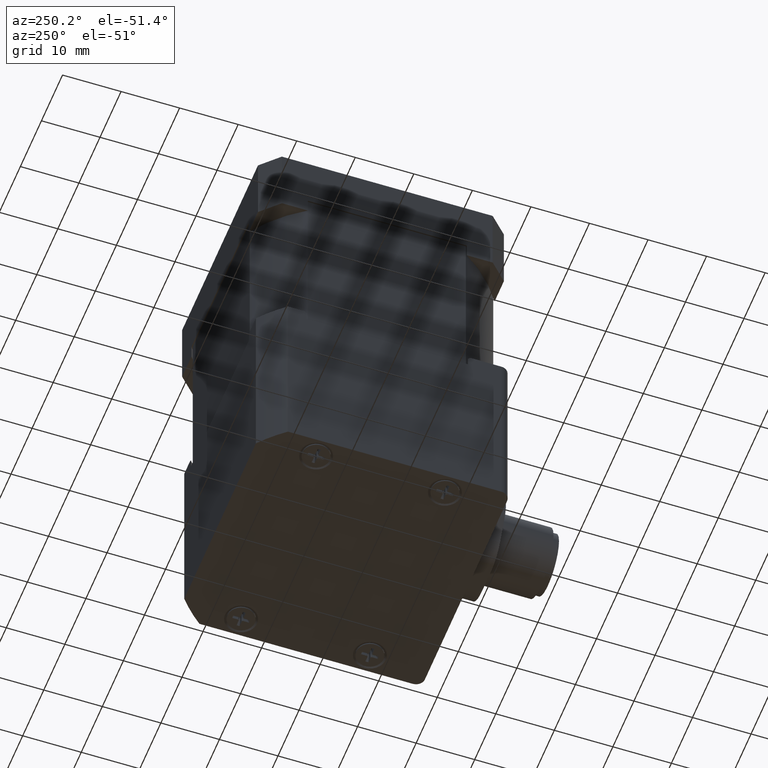
[diagram: clean part render]
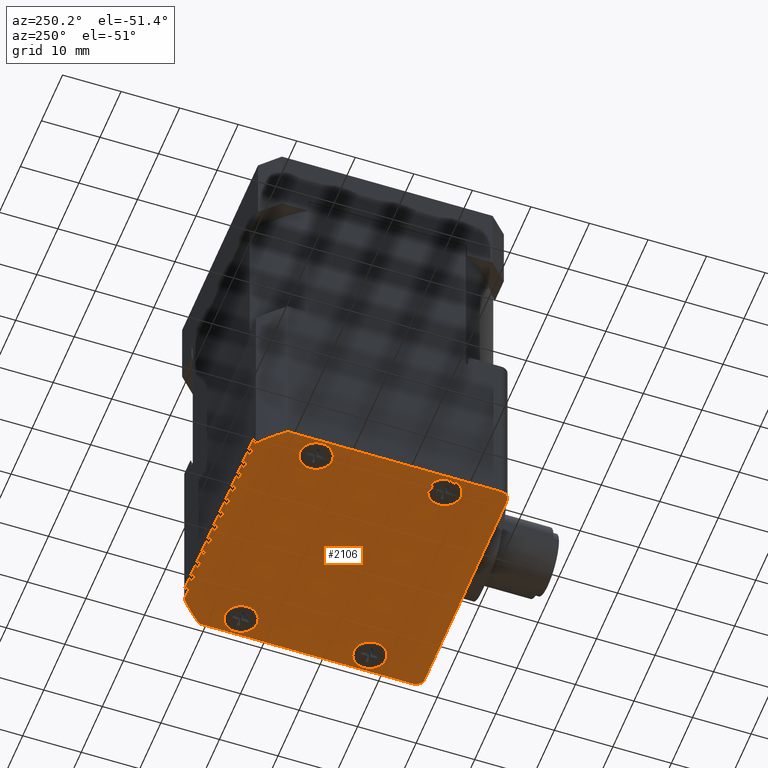
[diagram: same view with one face highlighted and labeled with its STEP entity id]
A machine part, auxiliary view. The second image highlights one B-rep face of the part: STEP entity #2106.
In plain terms, the highlighted planar face has unit normal (-0, 0, -1).
Its self-contained STEP definition (entity closure, byte-faithful):
#1748=CARTESIAN_POINT('',(16.970562748477057,-21.000000000000011,4.0));
#1749=VERTEX_POINT('',#1748);
#1750=CARTESIAN_POINT('',(-16.970562748476755,-21.000000000000014,4.0));
#1751=VERTEX_POINT('',#1750);
#1752=CARTESIAN_POINT('',(16.970562748477057,-21.000000000000011,4.0));
#1753=DIRECTION('',(-1.0,0.0,0.0));
#1754=VECTOR('',#1753,33.941125496953809);
#1755=LINE('',#1752,#1754);
#1756=EDGE_CURVE('',#1749,#1751,#1755,.T.);
#1788=CARTESIAN_POINT('',(21.0,-16.970562748477146,4.0));
#1789=VERTEX_POINT('',#1788);
#1790=CARTESIAN_POINT('',(1.465494E-013,1.865175E-013,4.0));
#1791=DIRECTION('',(0.0,0.0,-1.000000000000000));
#1792=DIRECTION('',(0.628539361054700,-0.777777777777785,0.0));
#1793=AXIS2_PLACEMENT_3D('',#1790,#1791,#1792);
#1794=CIRCLE('',#1793,27.0);
#1795=EDGE_CURVE('',#1789,#1749,#1794,.T.);
#1821=CARTESIAN_POINT('',(21.0,19.500000000000000,4.0));
#1822=VERTEX_POINT('',#1821);
#1823=CARTESIAN_POINT('',(21.0,19.500000000000000,4.0));
#1824=DIRECTION('',(0.0,-1.0,0.0));
#1825=VECTOR('',#1824,36.470562748477143);
#1826=LINE('',#1823,#1825);
#1827=EDGE_CURVE('',#1822,#1789,#1826,.T.);
#1852=CARTESIAN_POINT('',(19.500000000000000,21.0,4.0));
#1853=VERTEX_POINT('',#1852);
#1854=CARTESIAN_POINT('',(19.500000000000000,19.500000000000000,4.0));
#1855=DIRECTION('',(0.0,0.0,-1.0));
#1856=DIRECTION('',(1.0,0.0,0.0));
#1857=AXIS2_PLACEMENT_3D('',#1854,#1855,#1856);
#1858=CIRCLE('',#1857,1.500000000000000);
#1859=EDGE_CURVE('',#1853,#1822,#1858,.T.);
#1885=CARTESIAN_POINT('',(-19.500000000000000,21.0,4.0));
#1886=VERTEX_POINT('',#1885);
#1887=CARTESIAN_POINT('',(-19.500000000000000,21.0,4.0));
#1888=DIRECTION('',(1.0,0.0,0.0));
#1889=VECTOR('',#1888,39.0);
#1890=LINE('',#1887,#1889);
#1891=EDGE_CURVE('',#1886,#1853,#1890,.T.);
#1916=CARTESIAN_POINT('',(-21.0,19.500000000000000,4.0));
#1917=VERTEX_POINT('',#1916);
#1918=CARTESIAN_POINT('',(-19.500000000000000,19.500000000000000,4.0));
#1919=DIRECTION('',(0.0,0.0,-1.0));
#1920=DIRECTION('',(0.0,1.0,0.0));
#1921=AXIS2_PLACEMENT_3D('',#1918,#1919,#1920);
#1922=CIRCLE('',#1921,1.500000000000000);
#1923=EDGE_CURVE('',#1917,#1886,#1922,.T.);
#1949=CARTESIAN_POINT('',(-21.0,-16.970562748477136,4.0));
#1950=VERTEX_POINT('',#1949);
#1951=CARTESIAN_POINT('',(-21.0,-16.970562748477136,4.0));
#1952=DIRECTION('',(0.0,1.0,0.0));
#1953=VECTOR('',#1952,36.470562748477136);
#1954=LINE('',#1951,#1953);
#1955=EDGE_CURVE('',#1950,#1917,#1954,.T.);
#1980=CARTESIAN_POINT('',(1.465494E-013,1.865175E-013,4.0));
#1981=DIRECTION('',(0.0,0.0,-1.000000000000000));
#1982=DIRECTION('',(-0.777777777777777,-0.628539361054710,0.0));
#1983=AXIS2_PLACEMENT_3D('',#1980,#1981,#1982);
#1984=CIRCLE('',#1983,27.0);
#1985=EDGE_CURVE('',#1751,#1950,#1984,.T.);
#2004=CARTESIAN_POINT('',(20.550000000000001,-11.000000000000004,4.0));
#2005=VERTEX_POINT('',#2004);
#2006=CARTESIAN_POINT('',(17.799999999999994,-11.000000000000004,4.0));
#2007=DIRECTION('',(0.0,0.0,-1.0));
#2008=DIRECTION('',(1.0,0.0,0.0));
#2009=AXIS2_PLACEMENT_3D('',#2006,#2007,#2008);
#2010=CIRCLE('',#2009,2.750000000000001);
#2011=EDGE_CURVE('',#2005,#2005,#2010,.T.);
#2024=CARTESIAN_POINT('',(-15.050000000000008,-11.000000000000012,4.0));
#2025=VERTEX_POINT('',#2024);
#2026=CARTESIAN_POINT('',(-17.800000000000004,-11.000000000000012,4.0));
#2027=DIRECTION('',(0.0,0.0,-1.0));
#2028=DIRECTION('',(1.0,0.0,0.0));
#2029=AXIS2_PLACEMENT_3D('',#2026,#2027,#2028);
#2030=CIRCLE('',#2029,2.750000000000001);
#2031=EDGE_CURVE('',#2025,#2025,#2030,.T.);
#2044=CARTESIAN_POINT('',(-15.050000000000001,10.999999999999996,4.0));
#2045=VERTEX_POINT('',#2044);
#2046=CARTESIAN_POINT('',(-17.799999999999994,10.999999999999996,4.0));
#2047=DIRECTION('',(0.0,0.0,-1.0));
#2048=DIRECTION('',(1.0,0.0,0.0));
#2049=AXIS2_PLACEMENT_3D('',#2046,#2047,#2048);
#2050=CIRCLE('',#2049,2.750000000000001);
#2051=EDGE_CURVE('',#2045,#2045,#2050,.T.);
#2064=CARTESIAN_POINT('',(20.550000000000011,10.999999999999996,4.0));
#2065=VERTEX_POINT('',#2064);
#2066=CARTESIAN_POINT('',(17.800000000000004,10.999999999999996,4.0));
#2067=DIRECTION('',(0.0,0.0,-1.0));
#2068=DIRECTION('',(1.0,0.0,0.0));
#2069=AXIS2_PLACEMENT_3D('',#2066,#2067,#2068);
#2070=CIRCLE('',#2069,2.750000000000001);
#2071=EDGE_CURVE('',#2065,#2065,#2070,.T.);
#2079=CARTESIAN_POINT('',(1.554312E-014,0.476957528527390,4.0));
#2080=DIRECTION('',(0.0,0.0,1.0));
#2081=DIRECTION('',(1.0,0.0,0.0));
#2082=AXIS2_PLACEMENT_3D('',#2079,#2080,#2081);
#2083=PLANE('',#2082);
#2084=ORIENTED_EDGE('',*,*,#1955,.F.);
#2085=ORIENTED_EDGE('',*,*,#1985,.F.);
#2086=ORIENTED_EDGE('',*,*,#1756,.F.);
#2087=ORIENTED_EDGE('',*,*,#1795,.F.);
#2088=ORIENTED_EDGE('',*,*,#1827,.F.);
#2089=ORIENTED_EDGE('',*,*,#1859,.F.);
#2090=ORIENTED_EDGE('',*,*,#1891,.F.);
#2091=ORIENTED_EDGE('',*,*,#1923,.F.);
#2092=EDGE_LOOP('',(#2084,#2085,#2086,#2087,#2088,#2089,#2090,#2091));
#2093=FACE_OUTER_BOUND('',#2092,.T.);
#2094=ORIENTED_EDGE('',*,*,#2011,.T.);
#2095=EDGE_LOOP('',(#2094));
#2096=FACE_BOUND('',#2095,.T.);
#2097=ORIENTED_EDGE('',*,*,#2031,.T.);
#2098=EDGE_LOOP('',(#2097));
#2099=FACE_BOUND('',#2098,.T.);
#2100=ORIENTED_EDGE('',*,*,#2051,.T.);
#2101=EDGE_LOOP('',(#2100));
#2102=FACE_BOUND('',#2101,.T.);
#2103=ORIENTED_EDGE('',*,*,#2071,.T.);
#2104=EDGE_LOOP('',(#2103));
#2105=FACE_BOUND('',#2104,.T.);
#2106=ADVANCED_FACE('',(#2093,#2096,#2099,#2102,#2105),#2083,.T.);